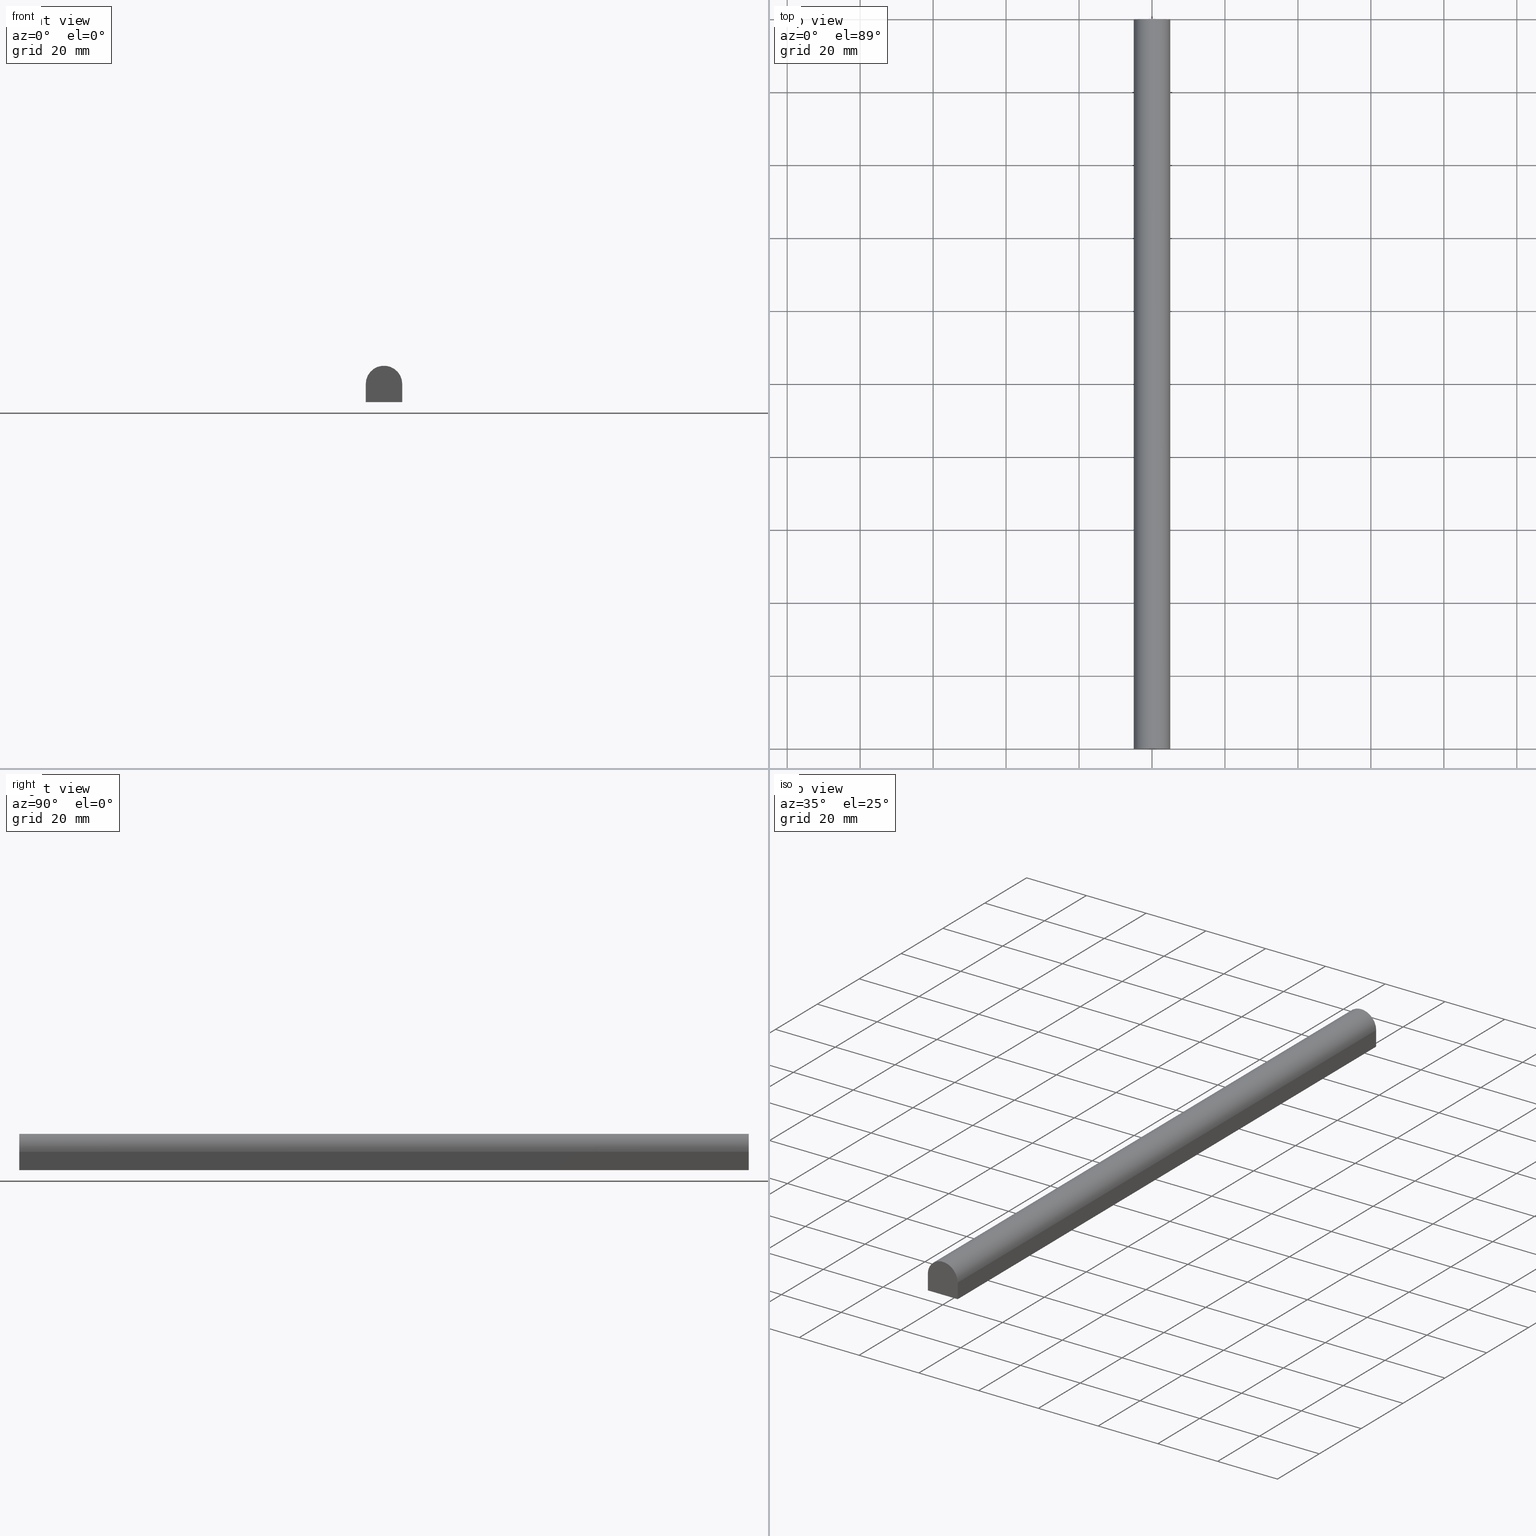
[diagram: canonical four-view strip — front | top / right | iso, engineering-drawing reading convention]
A machine part, canonical four-view strip (front | top / right | iso — engineering-drawing reading convention). The complete STEP part file that produces these views, byte-faithful:
ISO-10303-21;
HEADER;
FILE_DESCRIPTION (( 'STEP AP214' ),
    '1' );
FILE_NAME ('TM_341W_4.STEP',
    '2016-05-10T04:13:55',
    ( '' ),
    ( '' ),
    'SwSTEP 2.0',
    'SolidWorks 2015',
    '' );
FILE_SCHEMA (( 'AUTOMOTIVE_DESIGN' ));
ENDSEC;

DATA;
#1 = CARTESIAN_POINT ( 'NONE',  ( -5.000000000000000000, 0.0000000000000000000, 6.123031769111890200E-016 ) ) ;
#2 = CARTESIAN_POINT ( 'NONE',  ( 0.0000000000000000000, 0.0000000000000000000, 0.0000000000000000000 ) ) ;
#3 = CARTESIAN_POINT ( 'NONE',  ( 5.000000000000000000, 200.0000000000000000, -5.000000000000000000 ) ) ;
#4 = EDGE_CURVE ( 'NONE', #214, #187, #230, .T. ) ;
#5 = DIRECTION ( 'NONE',  ( 0.0000000000000000000, 0.0000000000000000000, 1.000000000000000000 ) ) ;
#6 =( GEOMETRIC_REPRESENTATION_CONTEXT ( 3 ) GLOBAL_UNCERTAINTY_ASSIGNED_CONTEXT ( ( #195 ) ) GLOBAL_UNIT_ASSIGNED_CONTEXT ( ( #169, #14, #127 ) ) REPRESENTATION_CONTEXT ( 'NONE', 'WORKASPACE' ) );
#7 = VERTEX_POINT ( 'NONE', #163 ) ;
#8 = SURFACE_STYLE_USAGE ( .BOTH. , #93 ) ;
#9 = PRESENTATION_LAYER_ASSIGNMENT (  '', '', ( #217 ) ) ;
#10 = EDGE_CURVE ( 'NONE', #134, #214, #130, .T. ) ;
#11 = AXIS2_PLACEMENT_3D ( 'NONE', #64, #70, #132 ) ;
#12 = PRODUCT_DEFINITION_SHAPE ( 'NONE', 'NONE',  #154 ) ;
#13 = EDGE_CURVE ( 'NONE', #206, #7, #103, .T. ) ;
#14 =( NAMED_UNIT ( * ) PLANE_ANGLE_UNIT ( ) SI_UNIT ( $, .RADIAN. ) );
#15 = ORIENTED_EDGE ( 'NONE', *, *, #10, .T. ) ;
#16 = CARTESIAN_POINT ( 'NONE',  ( 0.0000000000000000000, 0.0000000000000000000, 0.0000000000000000000 ) ) ;
#17 = UNCERTAINTY_MEASURE_WITH_UNIT (LENGTH_MEASURE( 1.000000000000000100E-005 ), #222, 'distance_accuracy_value', 'NONE');
#18 = PLANE ( 'NONE',  #11 ) ;
#19 = CONTEXT_DEPENDENT_SHAPE_REPRESENTATION ( #200, #47 ) ;
#20 = PRESENTATION_STYLE_ASSIGNMENT (( #239 ) ) ;
#21 = CARTESIAN_POINT ( 'NONE',  ( -5.000000000000000000, 0.0000000000000000000, 0.0000000000000000000 ) ) ;
#22 = FACE_OUTER_BOUND ( 'NONE', #183, .T. ) ;
#23 = APPLICATION_CONTEXT ( 'automotive_design' ) ;
#24 = CARTESIAN_POINT ( 'NONE',  ( -5.000000000000000000, 200.0000000000000000, 6.123031769111890200E-016 ) ) ;
#25 = SURFACE_SIDE_STYLE ('',( #60 ) ) ;
#26 =( GEOMETRIC_REPRESENTATION_CONTEXT ( 3 ) GLOBAL_UNCERTAINTY_ASSIGNED_CONTEXT ( ( #17 ) ) GLOBAL_UNIT_ASSIGNED_CONTEXT ( ( #222, #229, #128 ) ) REPRESENTATION_CONTEXT ( 'NONE', 'WORKASPACE' ) );
#27 = VECTOR ( 'NONE', #226, 1000.000000000000000 ) ;
#28 = EDGE_CURVE ( 'NONE', #214, #206, #87, .T. ) ;
#29 = ORIENTED_EDGE ( 'NONE', *, *, #236, .T. ) ;
#30 = LINE ( 'NONE', #213, #125 ) ;
#31 = EDGE_CURVE ( 'NONE', #7, #51, #30, .T. ) ;
#32 = CARTESIAN_POINT ( 'NONE',  ( 5.000000000000000000, 200.0000000000000000, 0.0000000000000000000 ) ) ;
#33 = DIRECTION ( 'NONE',  ( -0.0000000000000000000, -0.0000000000000000000, 1.000000000000000000 ) ) ;
#34 = ORIENTED_EDGE ( 'NONE', *, *, #13, .F. ) ;
#35 = PRESENTATION_STYLE_ASSIGNMENT (( #8 ) ) ;
#36 = PRESENTATION_LAYER_ASSIGNMENT (  '', '', ( #102 ) ) ;
#37 = VECTOR ( 'NONE', #202, 1000.000000000000000 ) ;
#38 = DIRECTION ( 'NONE',  ( 0.0000000000000000000, -1.000000000000000000, 0.0000000000000000000 ) ) ;
#39 =( LENGTH_UNIT ( ) NAMED_UNIT ( * ) SI_UNIT ( .MILLI., .METRE. ) );
#40 = CIRCLE ( 'NONE', #86, 5.000000000000000000 ) ;
#41 = EDGE_CURVE ( 'NONE', #206, #90, #171, .T. ) ;
#42 = ORIENTED_EDGE ( 'NONE', *, *, #41, .T. ) ;
#43 = APPLICATION_CONTEXT ( 'automotive_design' ) ;
#44 = PRODUCT_RELATED_PRODUCT_CATEGORY ( 'part', '', ( #162 ) ) ;
#45 = DIRECTION ( 'NONE',  ( 0.0000000000000000000, 0.0000000000000000000, 1.000000000000000000 ) ) ;
#46 = ORIENTED_EDGE ( 'NONE', *, *, #212, .T. ) ;
#47 = PRODUCT_DEFINITION_SHAPE ( 'NONE', 'NONE',  #241 ) ;
#48 = MECHANICAL_DESIGN_GEOMETRIC_PRESENTATION_REPRESENTATION (  '', ( #217 ), #123 ) ;
#49 = ORIENTED_EDGE ( 'NONE', *, *, #31, .F. ) ;
#50 = AXIS2_PLACEMENT_3D ( 'NONE', #153, #112, #156 ) ;
#51 = VERTEX_POINT ( 'NONE', #152 ) ;
#52 = SHAPE_REPRESENTATION ( 'rubber foam', ( #192 ), #119 ) ;
#53 = DIRECTION ( 'NONE',  ( -0.0000000000000000000, -1.000000000000000000, -0.0000000000000000000 ) ) ;
#54 = EDGE_CURVE ( 'NONE', #90, #51, #165, .T. ) ;
#55 = DIRECTION ( 'NONE',  ( 1.000000000000000000, 0.0000000000000000000, 0.0000000000000000000 ) ) ;
#56 = FILL_AREA_STYLE ('',( #180 ) ) ;
#57 = VECTOR ( 'NONE', #204, 1000.000000000000000 ) ;
#58 = APPLICATION_PROTOCOL_DEFINITION ( 'draft international standard', 'automotive_design', 1998, #43 ) ;
#59 = CARTESIAN_POINT ( 'NONE',  ( -5.000000000000000000, 1000.000000000000000, -5.000000000000000000 ) ) ;
#60 = SURFACE_STYLE_FILL_AREA ( #182 ) ;
#61 = CARTESIAN_POINT ( 'NONE',  ( 5.000000000000000000, 0.0000000000000000000, -5.000000000000000000 ) ) ;
#62 = PLANE ( 'NONE',  #50 ) ;
#63 = FACE_OUTER_BOUND ( 'NONE', #194, .T. ) ;
#64 = CARTESIAN_POINT ( 'NONE',  ( -5.000000000000000000, 1000.000000000000000, 0.0000000000000000000 ) ) ;
#65 = FACE_OUTER_BOUND ( 'NONE', #167, .T. ) ;
#66 = SHAPE_DEFINITION_REPRESENTATION ( #12, #208 ) ;
#67 = CARTESIAN_POINT ( 'NONE',  ( -5.000000000000000000, 1000.000000000000000, 6.123031769111890200E-016 ) ) ;
#68 = DIRECTION ( 'NONE',  ( 1.000000000000000000, 0.0000000000000000000, 0.0000000000000000000 ) ) ;
#69 = ORIENTED_EDGE ( 'NONE', *, *, #28, .T. ) ;
#70 = DIRECTION ( 'NONE',  ( -1.000000000000000000, 0.0000000000000000000, 0.0000000000000000000 ) ) ;
#71 = AXIS2_PLACEMENT_3D ( 'NONE', #175, #227, #79 ) ;
#72 = FACE_OUTER_BOUND ( 'NONE', #76, .T. ) ;
#73 = PLANE ( 'NONE',  #240 ) ;
#74 = PLANE ( 'NONE',  #198 ) ;
#75 = PRODUCT_CONTEXT ( 'NONE', #23, 'mechanical' ) ;
#76 = EDGE_LOOP ( 'NONE', ( #199, #235, #46, #29 ) ) ;
#77 = SURFACE_STYLE_FILL_AREA ( #56 ) ;
#78 = ITEM_DEFINED_TRANSFORMATION ( 'NONE', 'NONE', #100,  #192 ) ;
#79 = DIRECTION ( 'NONE',  ( -1.000000000000000000, 0.0000000000000000000, 0.0000000000000000000 ) ) ;
#80 = FACE_OUTER_BOUND ( 'NONE', #105, .T. ) ;
#81 = UNCERTAINTY_MEASURE_WITH_UNIT (LENGTH_MEASURE( 1.000000000000000100E-005 ), #39, 'distance_accuracy_value', 'NONE');
#82 = ADVANCED_FACE ( 'NONE', ( #80 ), #211, .T. ) ;
#83 = ADVANCED_FACE ( 'NONE', ( #72 ), #74, .F. ) ;
#84 = VERTEX_POINT ( 'NONE', #1 ) ;
#85 = ADVANCED_FACE ( 'NONE', ( #114 ), #73, .T. ) ;
#86 = AXIS2_PLACEMENT_3D ( 'NONE', #2, #168, #45 ) ;
#87 = LINE ( 'NONE', #135, #220 ) ;
#88 = COLOUR_RGB ( '',0.7921568627450980000, 0.8196078431372548800, 0.9333333333333333500 ) ;
#89 = CARTESIAN_POINT ( 'NONE',  ( 5.000000000000000000, 0.0000000000000000000, 0.0000000000000000000 ) ) ;
#90 = VERTEX_POINT ( 'NONE', #61 ) ;
#91 = AXIS2_PLACEMENT_3D ( 'NONE', #96, #107, #181 ) ;
#92 = PRODUCT_CONTEXT ( 'NONE', #129, 'mechanical' ) ;
#93 = SURFACE_SIDE_STYLE ('',( #77 ) ) ;
#94 = ORIENTED_EDGE ( 'NONE', *, *, #4, .F. ) ;
#95 = DIRECTION ( 'NONE',  ( -0.0000000000000000000, -0.0000000000000000000, 1.000000000000000000 ) ) ;
#96 = CARTESIAN_POINT ( 'NONE',  ( 0.0000000000000000000, 1000.000000000000000, 0.0000000000000000000 ) ) ;
#97 = ADVANCED_FACE ( 'NONE', ( #65 ), #62, .T. ) ;
#98 = ORIENTED_EDGE ( 'NONE', *, *, #190, .F. ) ;
#99 = DIRECTION ( 'NONE',  ( 1.000000000000000000, 0.0000000000000000000, 0.0000000000000000000 ) ) ;
#100 = AXIS2_PLACEMENT_3D ( 'NONE', #120, #150, #99 ) ;
#101 =( NAMED_UNIT ( * ) SI_UNIT ( $, .STERADIAN. ) SOLID_ANGLE_UNIT ( ) );
#102 = STYLED_ITEM ( 'NONE', ( #20 ), #223 ) ;
#103 = LINE ( 'NONE', #32, #124 ) ;
#104 = ADVANCED_BREP_SHAPE_REPRESENTATION ( '', ( #223, #192 ), #119 ) ;
#105 = EDGE_LOOP ( 'NONE', ( #141, #49, #178, #224 ) ) ;
#106 = ADVANCED_FACE ( 'NONE', ( #22 ), #18, .T. ) ;
#107 = DIRECTION ( 'NONE',  ( 0.0000000000000000000, -1.000000000000000000, 0.0000000000000000000 ) ) ;
#108 = PRODUCT_DEFINITION ( 'UNKNOWN', '', #193, #174 ) ;
#109 = DIRECTION ( 'NONE',  ( 1.000000000000000000, -0.0000000000000000000, -0.0000000000000000000 ) ) ;
#110 = VECTOR ( 'NONE', #201, 1000.000000000000000 ) ;
#111 = ADVANCED_FACE ( 'NONE', ( #63 ), #115, .T. ) ;
#112 = DIRECTION ( 'NONE',  ( 1.000000000000000000, 0.0000000000000000000, 0.0000000000000000000 ) ) ;
#113 = DIRECTION ( 'NONE',  ( 1.000000000000000000, 0.0000000000000000000, 0.0000000000000000000 ) ) ;
#114 = FACE_OUTER_BOUND ( 'NONE', #144, .T. ) ;
#115 = PLANE ( 'NONE',  #71 ) ;
#116 = CARTESIAN_POINT ( 'NONE',  ( 5.000000000000000000, 1000.000000000000000, -5.000000000000000000 ) ) ;
#117 = MECHANICAL_DESIGN_GEOMETRIC_PRESENTATION_REPRESENTATION (  '', ( #102 ), #26 ) ;
#118 =( NAMED_UNIT ( * ) PLANE_ANGLE_UNIT ( ) SI_UNIT ( $, .RADIAN. ) );
#119 =( GEOMETRIC_REPRESENTATION_CONTEXT ( 3 ) GLOBAL_UNCERTAINTY_ASSIGNED_CONTEXT ( ( #164 ) ) GLOBAL_UNIT_ASSIGNED_CONTEXT ( ( #137, #159, #101 ) ) REPRESENTATION_CONTEXT ( 'NONE', 'WORKASPACE' ) );
#120 = CARTESIAN_POINT ( 'NONE',  ( 0.0000000000000000000, 0.0000000000000000000, 0.0000000000000000000 ) ) ;
#121 = PRODUCT_DEFINITION_SHAPE ( 'NONE', 'NONE',  #108 ) ;
#122 = VECTOR ( 'NONE', #33, 1000.000000000000000 ) ;
#123 =( GEOMETRIC_REPRESENTATION_CONTEXT ( 3 ) GLOBAL_UNCERTAINTY_ASSIGNED_CONTEXT ( ( #81 ) ) GLOBAL_UNIT_ASSIGNED_CONTEXT ( ( #39, #118, #148 ) ) REPRESENTATION_CONTEXT ( 'NONE', 'WORKASPACE' ) );
#124 = VECTOR ( 'NONE', #95, 1000.000000000000000 ) ;
#125 = VECTOR ( 'NONE', #38, 1000.000000000000000 ) ;
#126 = ORIENTED_EDGE ( 'NONE', *, *, #4, .T. ) ;
#127 =( NAMED_UNIT ( * ) SI_UNIT ( $, .STERADIAN. ) SOLID_ANGLE_UNIT ( ) );
#128 =( NAMED_UNIT ( * ) SI_UNIT ( $, .STERADIAN. ) SOLID_ANGLE_UNIT ( ) );
#129 = APPLICATION_CONTEXT ( 'automotive_design' ) ;
#130 = LINE ( 'NONE', #184, #37 ) ;
#131 = CARTESIAN_POINT ( 'NONE',  ( 0.0000000000000000000, 0.0000000000000000000, -5.000000000000000000 ) ) ;
#132 = DIRECTION ( 'NONE',  ( 0.0000000000000000000, 0.0000000000000000000, 1.000000000000000000 ) ) ;
#133 = DIRECTION ( 'NONE',  ( -0.0000000000000000000, 1.000000000000000000, 0.0000000000000000000 ) ) ;
#134 = VERTEX_POINT ( 'NONE', #24 ) ;
#135 = CARTESIAN_POINT ( 'NONE',  ( 0.0000000000000000000, 200.0000000000000000, -5.000000000000000000 ) ) ;
#136 = DIRECTION ( 'NONE',  ( 0.0000000000000000000, -1.000000000000000000, 0.0000000000000000000 ) ) ;
#137 =( LENGTH_UNIT ( ) NAMED_UNIT ( * ) SI_UNIT ( .MILLI., .METRE. ) );
#138 = ORIENTED_EDGE ( 'NONE', *, *, #31, .T. ) ;
#139 = CARTESIAN_POINT ( 'NONE',  ( 0.0000000000000000000, 0.0000000000000000000, 0.0000000000000000000 ) ) ;
#140 = VECTOR ( 'NONE', #177, 1000.000000000000000 ) ;
#141 = ORIENTED_EDGE ( 'NONE', *, *, #212, .F. ) ;
#142 = PRODUCT ( 'rubber foam', 'rubber foam', '', ( #75 ) ) ;
#143 = CLOSED_SHELL ( 'NONE', ( #111, #97, #82, #106, #85, #83 ) ) ;
#144 = EDGE_LOOP ( 'NONE', ( #145, #160, #238, #34 ) ) ;
#145 = ORIENTED_EDGE ( 'NONE', *, *, #28, .F. ) ;
#146 = CARTESIAN_POINT ( 'NONE',  ( -5.000000000000000000, 0.0000000000000000000, -5.000000000000000000 ) ) ;
#147 = PRODUCT_DEFINITION_CONTEXT ( 'detailed design', #161, 'design' ) ;
#148 =( NAMED_UNIT ( * ) SI_UNIT ( $, .STERADIAN. ) SOLID_ANGLE_UNIT ( ) );
#149 = DIRECTION ( 'NONE',  ( 0.0000000000000000000, 0.0000000000000000000, 1.000000000000000000 ) ) ;
#150 = DIRECTION ( 'NONE',  ( 0.0000000000000000000, 0.0000000000000000000, 1.000000000000000000 ) ) ;
#151 = LINE ( 'NONE', #67, #210 ) ;
#152 = CARTESIAN_POINT ( 'NONE',  ( 5.000000000000000000, 0.0000000000000000000, 0.0000000000000000000 ) ) ;
#153 = CARTESIAN_POINT ( 'NONE',  ( 5.000000000000000000, 1000.000000000000000, -5.000000000000000000 ) ) ;
#154 = PRODUCT_DEFINITION ( 'UNKNOWN', '', #216, #147 ) ;
#155 = ORIENTED_EDGE ( 'NONE', *, *, #54, .F. ) ;
#156 = DIRECTION ( 'NONE',  ( 0.0000000000000000000, 0.0000000000000000000, -1.000000000000000000 ) ) ;
#157 = SHAPE_DEFINITION_REPRESENTATION ( #121, #52 ) ;
#158 = FILL_AREA_STYLE_COLOUR ( '', #88 ) ;
#159 =( NAMED_UNIT ( * ) PLANE_ANGLE_UNIT ( ) SI_UNIT ( $, .RADIAN. ) );
#160 = ORIENTED_EDGE ( 'NONE', *, *, #10, .F. ) ;
#161 = APPLICATION_CONTEXT ( 'automotive_design' ) ;
#162 = PRODUCT ( 'TM_341W_4', 'TM_341W_4', '', ( #92 ) ) ;
#163 = CARTESIAN_POINT ( 'NONE',  ( 5.000000000000000000, 200.0000000000000000, 0.0000000000000000000 ) ) ;
#164 = UNCERTAINTY_MEASURE_WITH_UNIT (LENGTH_MEASURE( 1.000000000000000100E-005 ), #137, 'distance_accuracy_value', 'NONE');
#165 = LINE ( 'NONE', #89, #122 ) ;
#166 = CARTESIAN_POINT ( 'NONE',  ( 0.0000000000000000000, 200.0000000000000000, 0.0000000000000000000 ) ) ;
#167 = EDGE_LOOP ( 'NONE', ( #155, #232, #172, #138 ) ) ;
#168 = DIRECTION ( 'NONE',  ( -0.0000000000000000000, -1.000000000000000000, -0.0000000000000000000 ) ) ;
#169 =( LENGTH_UNIT ( ) NAMED_UNIT ( * ) SI_UNIT ( .MILLI., .METRE. ) );
#170 = APPLICATION_PROTOCOL_DEFINITION ( 'draft international standard', 'automotive_design', 1998, #23 ) ;
#171 = LINE ( 'NONE', #116, #27 ) ;
#172 = ORIENTED_EDGE ( 'NONE', *, *, #13, .T. ) ;
#173 = ORIENTED_EDGE ( 'NONE', *, *, #231, .F. ) ;
#174 = PRODUCT_DEFINITION_CONTEXT ( 'detailed design', #43, 'design' ) ;
#175 = CARTESIAN_POINT ( 'NONE',  ( -5.000000000000000000, 1000.000000000000000, -5.000000000000000000 ) ) ;
#176 = ORIENTED_EDGE ( 'NONE', *, *, #236, .F. ) ;
#177 = DIRECTION ( 'NONE',  ( -0.0000000000000000000, -0.0000000000000000000, -1.000000000000000000 ) ) ;
#178 = ORIENTED_EDGE ( 'NONE', *, *, #203, .T. ) ;
#179 = DIRECTION ( 'NONE',  ( -0.0000000000000000000, 1.000000000000000000, 0.0000000000000000000 ) ) ;
#180 = FILL_AREA_STYLE_COLOUR ( '', #219 ) ;
#181 = DIRECTION ( 'NONE',  ( 0.0000000000000000000, 0.0000000000000000000, -1.000000000000000000 ) ) ;
#182 = FILL_AREA_STYLE ('',( #158 ) ) ;
#183 = EDGE_LOOP ( 'NONE', ( #176, #98, #15, #126 ) ) ;
#184 = CARTESIAN_POINT ( 'NONE',  ( -5.000000000000000000, 200.0000000000000000, 0.0000000000000000000 ) ) ;
#185 = DIRECTION ( 'NONE',  ( 1.000000000000000000, 0.0000000000000000000, 0.0000000000000000000 ) ) ;
#186 = DIRECTION ( 'NONE',  ( 0.0000000000000000000, 0.0000000000000000000, 1.000000000000000000 ) ) ;
#187 = VERTEX_POINT ( 'NONE', #146 ) ;
#188 = APPLICATION_PROTOCOL_DEFINITION ( 'draft international standard', 'automotive_design', 1998, #161 ) ;
#189 = SHAPE_REPRESENTATION_RELATIONSHIP ( 'NONE' , 'NONE' ,  #52, #104 ) ;
#190 = EDGE_CURVE ( 'NONE', #134, #84, #151, .T. ) ;
#191 = AXIS2_PLACEMENT_3D ( 'NONE', #196, #215, #55 ) ;
#192 = AXIS2_PLACEMENT_3D ( 'NONE', #139, #186, #209 ) ;
#193 = PRODUCT_DEFINITION_FORMATION_WITH_SPECIFIED_SOURCE ( 'ANY', '', #142, .NOT_KNOWN. ) ;
#194 = EDGE_LOOP ( 'NONE', ( #173, #94, #69, #42 ) ) ;
#195 = UNCERTAINTY_MEASURE_WITH_UNIT (LENGTH_MEASURE( 1.000000000000000100E-005 ), #169, 'distance_accuracy_value', 'NONE');
#196 = CARTESIAN_POINT ( 'NONE',  ( 0.0000000000000000000, 0.0000000000000000000, 0.0000000000000000000 ) ) ;
#197 = APPLICATION_PROTOCOL_DEFINITION ( 'draft international standard', 'automotive_design', 1998, #129 ) ;
#198 = AXIS2_PLACEMENT_3D ( 'NONE', #16, #179, #68 ) ;
#199 = ORIENTED_EDGE ( 'NONE', *, *, #231, .T. ) ;
#200 =( REPRESENTATION_RELATIONSHIP ('NONE','NONE', #208, #52 ) REPRESENTATION_RELATIONSHIP_WITH_TRANSFORMATION ( #78 )SHAPE_REPRESENTATION_RELATIONSHIP( ) );
#201 = DIRECTION ( 'NONE',  ( 0.0000000000000000000, -1.000000000000000000, 0.0000000000000000000 ) ) ;
#202 = DIRECTION ( 'NONE',  ( -0.0000000000000000000, -0.0000000000000000000, -1.000000000000000000 ) ) ;
#203 = EDGE_CURVE ( 'NONE', #7, #134, #234, .T. ) ;
#204 = DIRECTION ( 'NONE',  ( 1.000000000000000000, -0.0000000000000000000, -0.0000000000000000000 ) ) ;
#205 = AXIS2_PLACEMENT_3D ( 'NONE', #221, #5, #185 ) ;
#206 = VERTEX_POINT ( 'NONE', #3 ) ;
#207 = CARTESIAN_POINT ( 'NONE',  ( -5.000000000000000000, 200.0000000000000000, -5.000000000000000000 ) ) ;
#208 = SHAPE_REPRESENTATION ( 'TM_341W_4', ( #191, #100 ), #6 ) ;
#209 = DIRECTION ( 'NONE',  ( 1.000000000000000000, 0.0000000000000000000, 0.0000000000000000000 ) ) ;
#210 = VECTOR ( 'NONE', #136, 1000.000000000000000 ) ;
#211 = CYLINDRICAL_SURFACE ( 'NONE', #91, 5.000000000000000000 ) ;
#212 = EDGE_CURVE ( 'NONE', #51, #84, #40, .T. ) ;
#213 = CARTESIAN_POINT ( 'NONE',  ( 5.000000000000000000, 1000.000000000000000, 0.0000000000000000000 ) ) ;
#214 = VERTEX_POINT ( 'NONE', #207 ) ;
#215 = DIRECTION ( 'NONE',  ( 0.0000000000000000000, 0.0000000000000000000, 1.000000000000000000 ) ) ;
#216 = PRODUCT_DEFINITION_FORMATION_WITH_SPECIFIED_SOURCE ( 'ANY', '', #162, .NOT_KNOWN. ) ;
#217 = STYLED_ITEM ( 'NONE', ( #35 ), #104 ) ;
#218 = CARTESIAN_POINT ( 'NONE',  ( 0.0000000000000000000, 200.0000000000000000, 0.0000000000000000000 ) ) ;
#219 = COLOUR_RGB ( '',0.7921568627450980000, 0.8196078431372548800, 0.9333333333333333500 ) ;
#220 = VECTOR ( 'NONE', #109, 1000.000000000000000 ) ;
#221 = CARTESIAN_POINT ( 'NONE',  ( 0.0000000000000000000, 0.0000000000000000000, 0.0000000000000000000 ) ) ;
#222 =( LENGTH_UNIT ( ) NAMED_UNIT ( * ) SI_UNIT ( .MILLI., .METRE. ) );
#223 = MANIFOLD_SOLID_BREP ( '���߰�1', #143 ) ;
#224 = ORIENTED_EDGE ( 'NONE', *, *, #190, .T. ) ;
#225 = AXIS2_PLACEMENT_3D ( 'NONE', #218, #53, #149 ) ;
#226 = DIRECTION ( 'NONE',  ( 0.0000000000000000000, -1.000000000000000000, 0.0000000000000000000 ) ) ;
#227 = DIRECTION ( 'NONE',  ( 0.0000000000000000000, 0.0000000000000000000, -1.000000000000000000 ) ) ;
#228 = LINE ( 'NONE', #131, #57 ) ;
#229 =( NAMED_UNIT ( * ) PLANE_ANGLE_UNIT ( ) SI_UNIT ( $, .RADIAN. ) );
#230 = LINE ( 'NONE', #59, #110 ) ;
#231 = EDGE_CURVE ( 'NONE', #187, #90, #228, .T. ) ;
#232 = ORIENTED_EDGE ( 'NONE', *, *, #41, .F. ) ;
#233 = PRODUCT_RELATED_PRODUCT_CATEGORY ( 'part', '', ( #142 ) ) ;
#234 = CIRCLE ( 'NONE', #225, 5.000000000000000000 ) ;
#235 = ORIENTED_EDGE ( 'NONE', *, *, #54, .T. ) ;
#236 = EDGE_CURVE ( 'NONE', #84, #187, #237, .T. ) ;
#237 = LINE ( 'NONE', #21, #140 ) ;
#238 = ORIENTED_EDGE ( 'NONE', *, *, #203, .F. ) ;
#239 = SURFACE_STYLE_USAGE ( .BOTH. , #25 ) ;
#240 = AXIS2_PLACEMENT_3D ( 'NONE', #166, #133, #113 ) ;
#241 = NEXT_ASSEMBLY_USAGE_OCCURRENCE ( 'NAUO1', ' ', ' ', #154, #108, $ ) ;
ENDSEC;
END-ISO-10303-21;
